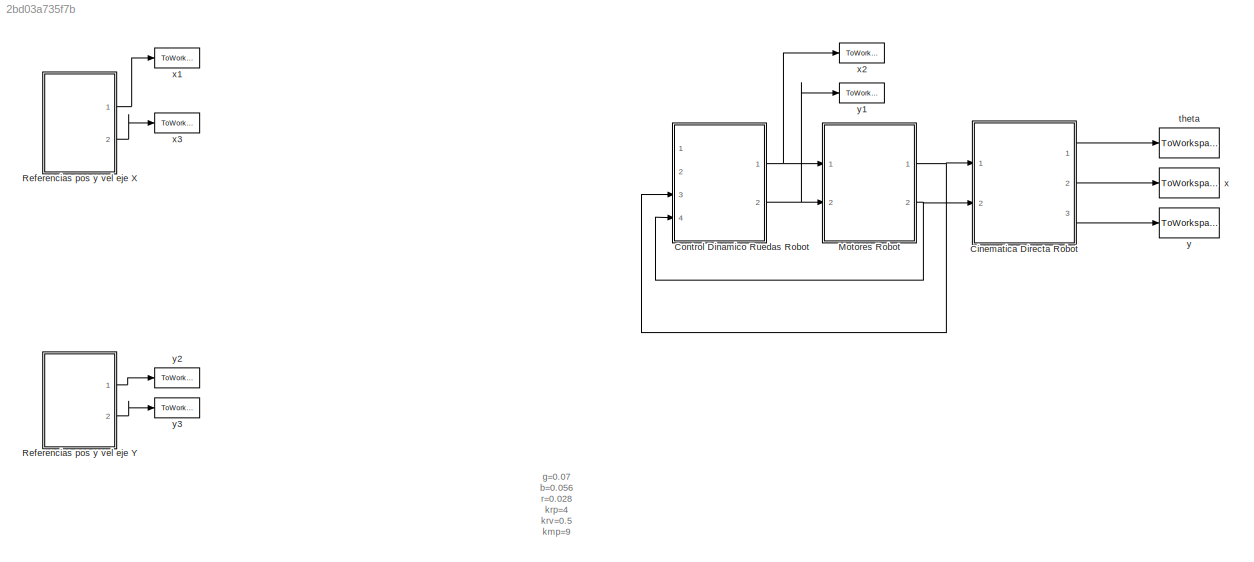
MODEL slx_2bd03a735f7b
KIND model
CONFIG AbsTol = auto
CONFIG FixedStep = 0.02
CONFIG MaxStep = auto
CONFIG MinStep = auto
CONFIG RelTol = 1e-3
CONFIG SampleTimeConstraint = Unconstrained
CONFIG Solver = ode4
CONFIG SolverMode = SingleTasking
CONFIG SolverName = ode4
CONFIG StartTime = 0.0
CONFIG StopTime = 30
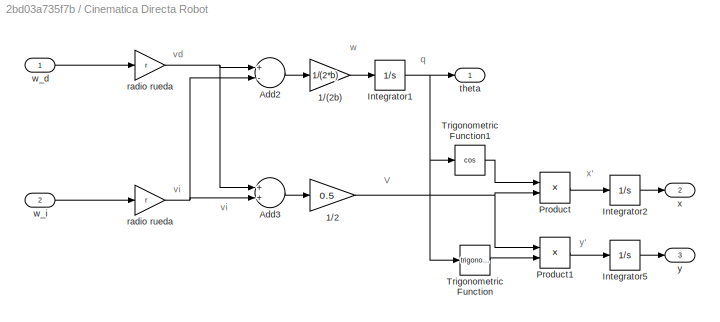
BLOCK [SubSystem] Cinematica Directa Robot
  Ports = [2, 3]
  RequestExecContextInheritance = off
  Variant = off
BLOCK [Gain] Cinematica Directa Robot/1//(2b)
  Gain = 1/(2*b)
  OutDataTypeStr = Inherit: Inherit via internal rule
  ParamDataTypeStr = Inherit: Inherit via internal rule
  SaturateOnIntegerOverflow = off
BLOCK [Gain] Cinematica Directa Robot/1//2
  Gain = 0.5
  OutDataTypeStr = Inherit: Inherit via internal rule
  ParamDataTypeStr = Inherit: Inherit via internal rule
  SaturateOnIntegerOverflow = off
BLOCK [Sum] Cinematica Directa Robot/Add2
  InputSameDT = off
  Inputs = +-
  OutDataTypeStr = Inherit: Inherit via internal rule
  Ports = [2, 1]
  SaturateOnIntegerOverflow = off
BLOCK [Sum] Cinematica Directa Robot/Add3
  InputSameDT = off
  OutDataTypeStr = Inherit: Inherit via internal rule
  Ports = [2, 1]
  SaturateOnIntegerOverflow = off
BLOCK [Integrator] Cinematica Directa Robot/Integrator1
  Ports = [1, 1]
BLOCK [Integrator] Cinematica Directa Robot/Integrator2
  InitialCondition = 0.35
  Ports = [1, 1]
BLOCK [Integrator] Cinematica Directa Robot/Integrator5
  Ports = [1, 1]
BLOCK [Product] Cinematica Directa Robot/Product
  InputSameDT = off
  OutDataTypeStr = Inherit: Inherit via internal rule
  Ports = [2, 1]
  SaturateOnIntegerOverflow = off
BLOCK [Product] Cinematica Directa Robot/Product1
  InputSameDT = off
  OutDataTypeStr = Inherit: Inherit via internal rule
  Ports = [2, 1]
  SaturateOnIntegerOverflow = off
BLOCK [Trigonometry] Cinematica Directa Robot/Trigonometric Function
  Ports = [1, 1]
BLOCK [Trigonometry] Cinematica Directa Robot/Trigonometric Function1
  Operator = cos
  Ports = [1, 1]
BLOCK [Gain] Cinematica Directa Robot/radio rueda
  Gain = r
  OutDataTypeStr = Inherit: Inherit via internal rule
  ParamDataTypeStr = Inherit: Inherit via internal rule
  SaturateOnIntegerOverflow = off
BLOCK [Gain] Cinematica Directa Robot/radio rueda 
  Gain = r
  OutDataTypeStr = Inherit: Inherit via internal rule
  ParamDataTypeStr = Inherit: Inherit via internal rule
  SaturateOnIntegerOverflow = off
BLOCK [Outport] Cinematica Directa Robot/theta
  IconDisplay = Port number
BLOCK [Inport] Cinematica Directa Robot/w_d
  IconDisplay = Port number
BLOCK [Inport] Cinematica Directa Robot/w_i
  IconDisplay = Port number
  Port = 2
BLOCK [Outport] Cinematica Directa Robot/x
  IconDisplay = Port number
  Port = 2
BLOCK [Outport] Cinematica Directa Robot/y
  IconDisplay = Port number
  Port = 3
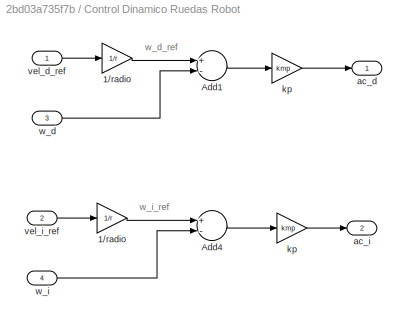
BLOCK [SubSystem] Control Dinamico Ruedas Robot
  Ports = [4, 2]
  RequestExecContextInheritance = off
  Variant = off
BLOCK [Gain] Control Dinamico Ruedas Robot/1//radio
  Gain = 1/r
  OutDataTypeStr = Inherit: Inherit via internal rule
  ParamDataTypeStr = Inherit: Inherit via internal rule
  SaturateOnIntegerOverflow = off
BLOCK [Gain] Control Dinamico Ruedas Robot/1//radio 
  Gain = 1/r
  OutDataTypeStr = Inherit: Inherit via internal rule
  ParamDataTypeStr = Inherit: Inherit via internal rule
  SaturateOnIntegerOverflow = off
BLOCK [Sum] Control Dinamico Ruedas Robot/Add1
  InputSameDT = off
  Inputs = +-
  OutDataTypeStr = Inherit: Inherit via internal rule
  Ports = [2, 1]
  SaturateOnIntegerOverflow = off
BLOCK [Sum] Control Dinamico Ruedas Robot/Add4
  InputSameDT = off
  Inputs = +-
  OutDataTypeStr = Inherit: Inherit via internal rule
  Ports = [2, 1]
  SaturateOnIntegerOverflow = off
BLOCK [Outport] Control Dinamico Ruedas Robot/ac_d
  IconDisplay = Port number
BLOCK [Outport] Control Dinamico Ruedas Robot/ac_i
  IconDisplay = Port number
  Port = 2
BLOCK [Gain] Control Dinamico Ruedas Robot/kp
  Gain = kmp
  OutDataTypeStr = Inherit: Inherit via internal rule
  ParamDataTypeStr = Inherit: Inherit via internal rule
  SaturateOnIntegerOverflow = off
BLOCK [Gain] Control Dinamico Ruedas Robot/kp 
  Gain = kmp
  OutDataTypeStr = Inherit: Inherit via internal rule
  ParamDataTypeStr = Inherit: Inherit via internal rule
  SaturateOnIntegerOverflow = off
BLOCK [Inport] Control Dinamico Ruedas Robot/vel_d_ref
  IconDisplay = Port number
BLOCK [Inport] Control Dinamico Ruedas Robot/vel_i_ref
  IconDisplay = Port number
  Port = 2
BLOCK [Inport] Control Dinamico Ruedas Robot/w_d
  IconDisplay = Port number
  Port = 3
BLOCK [Inport] Control Dinamico Ruedas Robot/w_i
  IconDisplay = Port number
  Port = 4
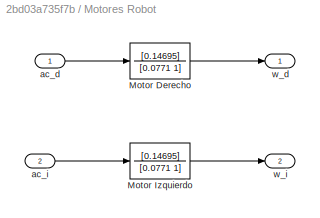
BLOCK [SubSystem] Motores Robot
  Ports = [2, 2]
  RequestExecContextInheritance = off
  Variant = off
BLOCK [TransferFcn] Motores Robot/Motor Derecho
  Denominator = [0.0771 1]
  Numerator = [0.14695]
BLOCK [TransferFcn] Motores Robot/Motor Izquierdo
  Denominator = [0.0771 1]
  Numerator = [0.14695]
BLOCK [Inport] Motores Robot/ac_d
  IconDisplay = Port number
BLOCK [Inport] Motores Robot/ac_i
  IconDisplay = Port number
  Port = 2
BLOCK [Outport] Motores Robot/w_d
  IconDisplay = Port number
BLOCK [Outport] Motores Robot/w_i
  IconDisplay = Port number
  Port = 2
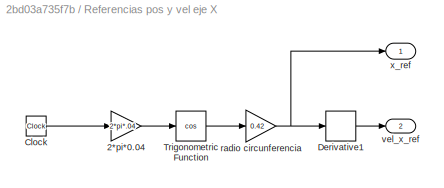
BLOCK [SubSystem] Referencias pos y vel eje X
  Ports = [0, 2]
  RequestExecContextInheritance = off
  Variant = off
BLOCK [Gain] Referencias pos y vel eje X/2*pi*0.04
  Gain = 2*pi*.04
  OutDataTypeStr = Inherit: Inherit via internal rule
  ParamDataTypeStr = Inherit: Inherit via internal rule
  SampleTime = 0.02
  SaturateOnIntegerOverflow = off
BLOCK [Clock] Referencias pos y vel eje X/Clock
BLOCK [Derivative] Referencias pos y vel eje X/Derivative1
BLOCK [Trigonometry] Referencias pos y vel eje X/Trigonometric Function
  Operator = cos
  Ports = [1, 1]
BLOCK [Gain] Referencias pos y vel eje X/radio circunferencia
  Gain = 0.42
  OutDataTypeStr = Inherit: Inherit via internal rule
  ParamDataTypeStr = Inherit: Inherit via internal rule
  SaturateOnIntegerOverflow = off
BLOCK [Outport] Referencias pos y vel eje X/vel_x_ref
  IconDisplay = Port number
  Port = 2
BLOCK [Outport] Referencias pos y vel eje X/x_ref
  IconDisplay = Port number
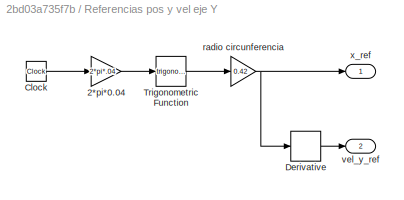
BLOCK [SubSystem] Referencias pos y vel eje Y
  Ports = [0, 2]
  RequestExecContextInheritance = off
  Variant = off
BLOCK [Gain] Referencias pos y vel eje Y/2*pi*0.04
  Gain = 2*pi*.04
  OutDataTypeStr = Inherit: Inherit via internal rule
  ParamDataTypeStr = Inherit: Inherit via internal rule
  SampleTime = 0.02
  SaturateOnIntegerOverflow = off
BLOCK [Clock] Referencias pos y vel eje Y/Clock
BLOCK [Derivative] Referencias pos y vel eje Y/Derivative
BLOCK [Trigonometry] Referencias pos y vel eje Y/Trigonometric Function
  Ports = [1, 1]
BLOCK [Gain] Referencias pos y vel eje Y/radio circunferencia
  Gain = 0.42
  OutDataTypeStr = Inherit: Inherit via internal rule
  ParamDataTypeStr = Inherit: Inherit via internal rule
  SaturateOnIntegerOverflow = off
BLOCK [Outport] Referencias pos y vel eje Y/vel_y_ref
  IconDisplay = Port number
  Port = 2
BLOCK [Outport] Referencias pos y vel eje Y/x_ref
  IconDisplay = Port number
BLOCK [ToWorkspace] theta
  MaxDataPoints = inf
  Ports = [1]
  SampleTime = -1
  VariableName = theta
BLOCK [ToWorkspace] x
  MaxDataPoints = inf
  Ports = [1]
  SampleTime = -1
  VariableName = x
BLOCK [ToWorkspace] x1
  MaxDataPoints = inf
  Ports = [1]
  SampleTime = -1
  VariableName = xref
BLOCK [ToWorkspace] x2
  MaxDataPoints = inf
  Ports = [1]
  SampleTime = -1
  VariableName = ac_d
BLOCK [ToWorkspace] x3
  MaxDataPoints = inf
  Ports = [1]
  SampleTime = -1
  VariableName = vel_xref
BLOCK [ToWorkspace] y
  MaxDataPoints = inf
  Ports = [1]
  SampleTime = -1
  VariableName = y
BLOCK [ToWorkspace] y1
  MaxDataPoints = inf
  Ports = [1]
  SampleTime = -1
  VariableName = ac_i
BLOCK [ToWorkspace] y2
  MaxDataPoints = inf
  Ports = [1]
  SampleTime = -1
  VariableName = yref
BLOCK [ToWorkspace] y3
  MaxDataPoints = inf
  Ports = [1]
  SampleTime = -1
  VariableName = vel_yref
ANNOTATION (root): g=0.07 b=0.056 r=0.028 krp=4 krv=0.5 kmp=9
ANNOTATION Cinematica Directa Robot: V
ANNOTATION Cinematica Directa Robot: q
ANNOTATION Cinematica Directa Robot: vd
ANNOTATION Cinematica Directa Robot: vi
ANNOTATION Cinematica Directa Robot: w
ANNOTATION Cinematica Directa Robot: x'
ANNOTATION Cinematica Directa Robot: y'
ANNOTATION Control Dinamico Ruedas Robot: w_d_ref
ANNOTATION Control Dinamico Ruedas Robot: w_i_ref
LINE Cinematica Directa Robot/1//(2b):1 -> Cinematica Directa Robot/Integrator1:1
NET Cinematica Directa Robot/1//2:1 -> Cinematica Directa Robot/Product1:1, Cinematica Directa Robot/Product:2
LINE Cinematica Directa Robot/Add2:1 -> Cinematica Directa Robot/1//(2b):1
LINE Cinematica Directa Robot/Add3:1 -> Cinematica Directa Robot/1//2:1
NET Cinematica Directa Robot/Integrator1:1 -> Cinematica Directa Robot/Trigonometric Function1:1, Cinematica Directa Robot/Trigonometric Function:1, Cinematica Directa Robot/theta:1
LINE Cinematica Directa Robot/Integrator2:1 -> Cinematica Directa Robot/x:1
LINE Cinematica Directa Robot/Integrator5:1 -> Cinematica Directa Robot/y:1
LINE Cinematica Directa Robot/Product1:1 -> Cinematica Directa Robot/Integrator5:1
LINE Cinematica Directa Robot/Product:1 -> Cinematica Directa Robot/Integrator2:1
LINE Cinematica Directa Robot/Trigonometric Function1:1 -> Cinematica Directa Robot/Product:1
LINE Cinematica Directa Robot/Trigonometric Function:1 -> Cinematica Directa Robot/Product1:2
NET Cinematica Directa Robot/radio rueda :1 -> Cinematica Directa Robot/Add2:2, Cinematica Directa Robot/Add3:2
NET Cinematica Directa Robot/radio rueda:1 -> Cinematica Directa Robot/Add2:1, Cinematica Directa Robot/Add3:1
LINE Cinematica Directa Robot/w_d:1 -> Cinematica Directa Robot/radio rueda:1
LINE Cinematica Directa Robot/w_i:1 -> Cinematica Directa Robot/radio rueda :1
LINE Cinematica Directa Robot:1 -> theta:1
LINE Cinematica Directa Robot:2 -> x:1
LINE Cinematica Directa Robot:3 -> y:1
LINE Control Dinamico Ruedas Robot/1//radio :1 -> Control Dinamico Ruedas Robot/Add4:1
LINE Control Dinamico Ruedas Robot/1//radio:1 -> Control Dinamico Ruedas Robot/Add1:1
LINE Control Dinamico Ruedas Robot/Add1:1 -> Control Dinamico Ruedas Robot/kp:1
LINE Control Dinamico Ruedas Robot/Add4:1 -> Control Dinamico Ruedas Robot/kp :1
LINE Control Dinamico Ruedas Robot/kp :1 -> Control Dinamico Ruedas Robot/ac_i:1
LINE Control Dinamico Ruedas Robot/kp:1 -> Control Dinamico Ruedas Robot/ac_d:1
LINE Control Dinamico Ruedas Robot/vel_d_ref:1 -> Control Dinamico Ruedas Robot/1//radio:1
LINE Control Dinamico Ruedas Robot/vel_i_ref:1 -> Control Dinamico Ruedas Robot/1//radio :1
LINE Control Dinamico Ruedas Robot/w_d:1 -> Control Dinamico Ruedas Robot/Add1:2
LINE Control Dinamico Ruedas Robot/w_i:1 -> Control Dinamico Ruedas Robot/Add4:2
NET Control Dinamico Ruedas Robot:1 -> Motores Robot:1, x2:1
NET Control Dinamico Ruedas Robot:2 -> Motores Robot:2, y1:1
LINE Motores Robot/Motor Derecho:1 -> Motores Robot/w_d:1
LINE Motores Robot/Motor Izquierdo:1 -> Motores Robot/w_i:1
LINE Motores Robot/ac_d:1 -> Motores Robot/Motor Derecho:1
LINE Motores Robot/ac_i:1 -> Motores Robot/Motor Izquierdo:1
NET Motores Robot:1 -> Cinematica Directa Robot:1, Control Dinamico Ruedas Robot:3
NET Motores Robot:2 -> Cinematica Directa Robot:2, Control Dinamico Ruedas Robot:4
LINE Referencias pos y vel eje X/2*pi*0.04:1 -> Referencias pos y vel eje X/Trigonometric Function:1
LINE Referencias pos y vel eje X/Clock:1 -> Referencias pos y vel eje X/2*pi*0.04:1
LINE Referencias pos y vel eje X/Derivative1:1 -> Referencias pos y vel eje X/vel_x_ref:1
LINE Referencias pos y vel eje X/Trigonometric Function:1 -> Referencias pos y vel eje X/radio circunferencia:1
NET Referencias pos y vel eje X/radio circunferencia:1 -> Referencias pos y vel eje X/Derivative1:1, Referencias pos y vel eje X/x_ref:1
LINE Referencias pos y vel eje X:1 -> x1:1
LINE Referencias pos y vel eje X:2 -> x3:1
LINE Referencias pos y vel eje Y/2*pi*0.04:1 -> Referencias pos y vel eje Y/Trigonometric Function:1
LINE Referencias pos y vel eje Y/Clock:1 -> Referencias pos y vel eje Y/2*pi*0.04:1
LINE Referencias pos y vel eje Y/Derivative:1 -> Referencias pos y vel eje Y/vel_y_ref:1
LINE Referencias pos y vel eje Y/Trigonometric Function:1 -> Referencias pos y vel eje Y/radio circunferencia:1
NET Referencias pos y vel eje Y/radio circunferencia:1 -> Referencias pos y vel eje Y/Derivative:1, Referencias pos y vel eje Y/x_ref:1
LINE Referencias pos y vel eje Y:1 -> y2:1
LINE Referencias pos y vel eje Y:2 -> y3:1
note: NET lines group one-source signal fan-out (src -> all destinations, sorted); 1:1 wires keep LINE
